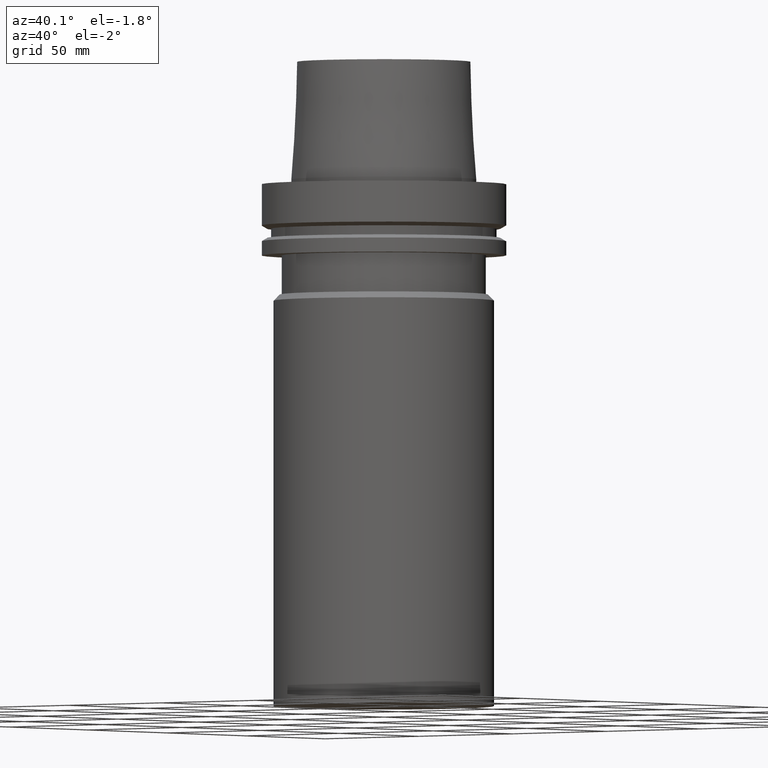
[diagram: clean part render]
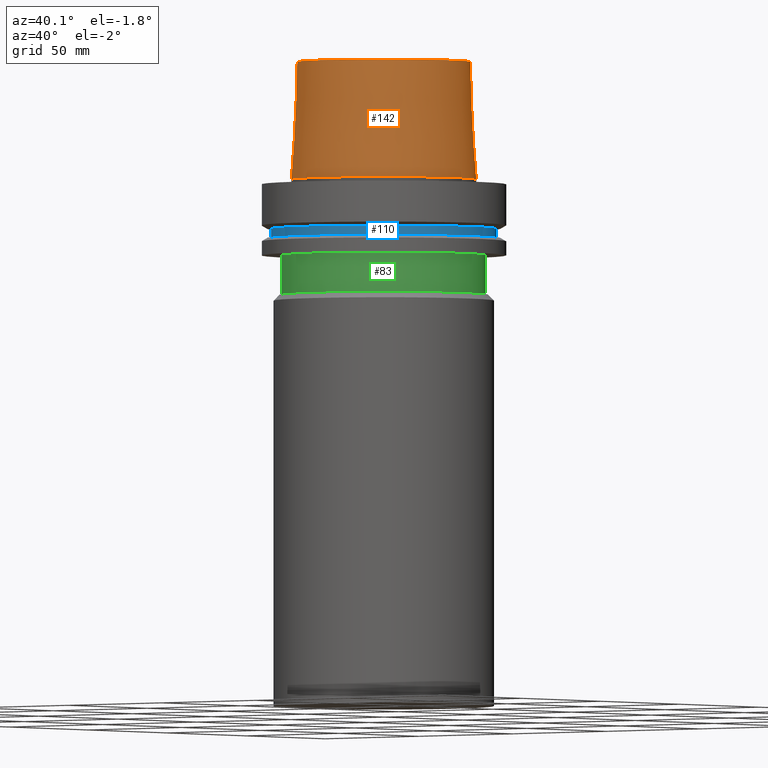
[diagram: same view with three faces highlighted in distinct colors, each labeled with its STEP entity id]
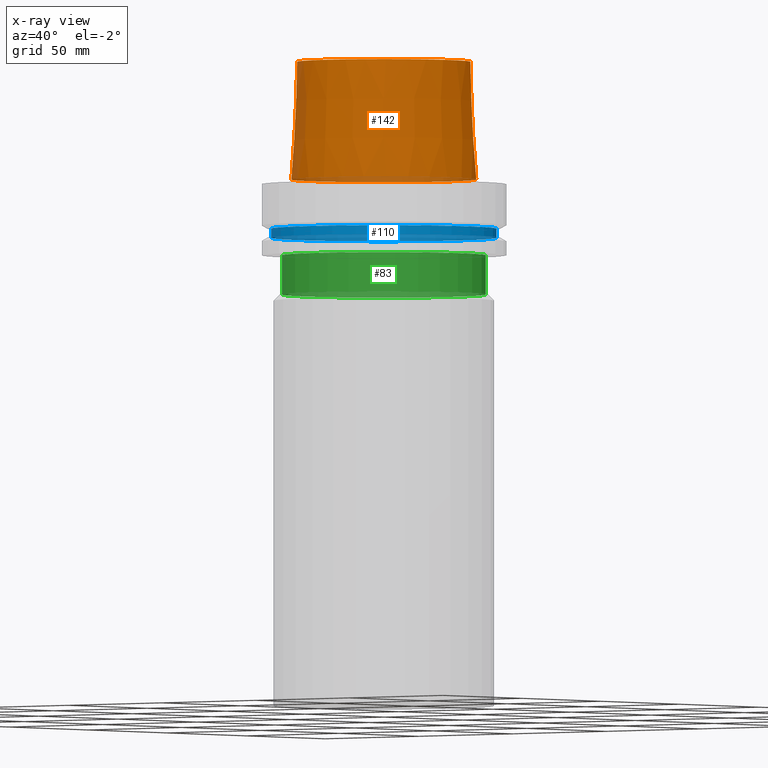
[diagram: x-ray of the same camera — body ghosted, the three highlighted faces saturated]
A machine part, auxiliary view with three faces highlighted in distinct colors.
The next image is the same camera in x-ray (body ghosted, the three faces saturated) — at least one of them is partly hidden behind the body in this view.
Their STEP definitions:

[orange] entity #142 — the highlighted conical surface has half-angle 2.862 deg.
#92=EDGE_CURVE('Unnamed[1]',#213,#213,#214,.T.);
#126=EDGE_CURVE('Unnamed[1]',#265,#265,#266,.T.);
#142=ADVANCED_FACE('Unnamed[1]',(#290,#291),#292,.T.);
#213=VERTEX_POINT('',#367);
#214=CIRCLE('',#368,37.9);
#265=VERTEX_POINT('',#432);
#266=CIRCLE('',#433,35.5000000015618);
#290=FACE_BOUND('',#463,.T.);
#291=FACE_BOUND('',#464,.T.);
#292=CONICAL_SURFACE('',#465,36.7000000007809,0.0499583956894865);
#367=CARTESIAN_POINT('',(-1.22464679914736E-016,37.9,2.0));
#368=AXIS2_PLACEMENT_3D('',#528,#529,#530);
#432=CARTESIAN_POINT('',(-3.06161699786838E-015,35.5000000015618,50.0));
#433=AXIS2_PLACEMENT_3D('',#583,#584,#585);
#463=EDGE_LOOP('',(#611));
#464=EDGE_LOOP('',(#612));
#465=AXIS2_PLACEMENT_3D('',#613,#614,#615);
#528=CARTESIAN_POINT('',(-1.22464679914735E-016,-2.44929359829471E-016,2.0));
#529=DIRECTION('',(6.12323399573677E-017,1.22464679914735E-016,-1.0));
#530=DIRECTION('',(-1.23259516440783E-032,1.0,1.22464679914735E-016));
#583=CARTESIAN_POINT('',(-3.06161699786838E-015,-6.12323399573676E-015,50.0));
#584=DIRECTION('',(6.12323399573677E-017,1.22464679914735E-016,-1.0));
#585=DIRECTION('',(-1.23259516440783E-032,1.0,1.22464679914735E-016));
#611=ORIENTED_EDGE('',*,*,#92,.F.);
#612=ORIENTED_EDGE('',*,*,#126,.T.);
#613=CARTESIAN_POINT('',(-1.59204083889156E-015,-3.18408167778312E-015,26.0));
#614=DIRECTION('',(6.12323399573677E-017,1.22464679914735E-016,-1.0));
#615=DIRECTION('',(-1.23259516440783E-032,1.0,1.22464679914735E-016));

[blue] entity #110 — the highlighted cylindrical surface (bore or boss wall) has radius 46 mm, axis along (0, 0, -1).
#77=EDGE_CURVE('Unnamed[1]',#191,#191,#192,.T.);
#110=ADVANCED_FACE('Unnamed[1]',(#239,#240),#241,.T.);
#115=EDGE_CURVE('Unnamed[1]',#248,#248,#249,.T.);
#191=VERTEX_POINT('',#339);
#192=CIRCLE('',#340,46.0);
#239=FACE_BOUND('',#399,.T.);
#240=FACE_BOUND('',#400,.T.);
#241=CYLINDRICAL_SURFACE('',#401,46.0);
#248=VERTEX_POINT('',#410);
#249=CIRCLE('',#411,46.0);
#339=CARTESIAN_POINT('',(1.10983616172729E-015,46.0,-18.125));
#340=AXIS2_PLACEMENT_3D('',#503,#504,#505);
#399=EDGE_LOOP('',(#554));
#400=EDGE_LOOP('',(#555));
#401=AXIS2_PLACEMENT_3D('',#556,#557,#558);
#410=CARTESIAN_POINT('',(1.33945743656742E-015,46.0,-21.875));
#411=AXIS2_PLACEMENT_3D('',#565,#566,#567);
#503=CARTESIAN_POINT('',(1.10983616172729E-015,2.21967232345458E-015,-18.125));
#504=DIRECTION('',(6.12323399573677E-017,1.22464679914735E-016,-1.0));
#505=DIRECTION('',(-1.23259516440783E-032,1.0,1.22464679914735E-016));
#554=ORIENTED_EDGE('',*,*,#115,.F.);
#555=ORIENTED_EDGE('',*,*,#77,.T.);
#556=CARTESIAN_POINT('',(1.22464679914735E-015,2.44929359829471E-015,-20.0));
#557=DIRECTION('',(6.12323399573677E-017,1.22464679914735E-016,-1.0));
#558=DIRECTION('',(-1.23259516440783E-032,1.0,1.22464679914735E-016));
#565=CARTESIAN_POINT('',(1.33945743656742E-015,2.67891487313483E-015,-21.875));
#566=DIRECTION('',(6.12323399573677E-017,1.22464679914735E-016,-1.0));
#567=DIRECTION('',(-1.23259516440783E-032,1.0,1.22464679914735E-016));

[green] entity #83 — the highlighted cylindrical surface (bore or boss wall) has radius 41.701 mm, axis along (0, 0, -1).
#60=EDGE_CURVE('Unnamed[1]',#163,#163,#164,.T.);
#83=ADVANCED_FACE('Unnamed[1]',(#199,#200),#201,.T.);
#119=EDGE_CURVE('Unnamed[1]',#254,#254,#255,.T.);
#163=VERTEX_POINT('',#305);
#164=CIRCLE('',#306,41.7010315672632);
#199=FACE_BOUND('',#349,.T.);
#200=FACE_BOUND('',#350,.T.);
#201=CYLINDRICAL_SURFACE('',#351,41.7010315672632);
#254=VERTEX_POINT('',#418);
#255=CIRCLE('',#419,41.7010315672632);
#305=CARTESIAN_POINT('',(1.77573785876366E-015,41.7010315672632,-29.0));
#306=AXIS2_PLACEMENT_3D('',#470,#471,#472);
#349=EDGE_LOOP('',(#512));
#350=EDGE_LOOP('',(#513));
#351=AXIS2_PLACEMENT_3D('',#514,#515,#516);
#418=CARTESIAN_POINT('',(2.75545529808154E-015,41.7010315672632,-45.0));
#419=AXIS2_PLACEMENT_3D('',#571,#572,#573);
#470=CARTESIAN_POINT('',(1.77573785876366E-015,3.55147571752732E-015,-29.0));
#471=DIRECTION('',(6.12323399573677E-017,1.22464679914735E-016,-1.0));
#472=DIRECTION('',(-1.23259516440783E-032,1.0,1.22464679914735E-016));
#512=ORIENTED_EDGE('',*,*,#119,.F.);
#513=ORIENTED_EDGE('',*,*,#60,.T.);
#514=CARTESIAN_POINT('',(2.2655965784226E-015,4.53119315684521E-015,-37.0));
#515=DIRECTION('',(6.12323399573677E-017,1.22464679914735E-016,-1.0));
#516=DIRECTION('',(-1.23259516440783E-032,1.0,1.22464679914735E-016));
#571=CARTESIAN_POINT('',(2.75545529808154E-015,5.51091059616308E-015,-45.0));
#572=DIRECTION('',(6.12323399573677E-017,1.22464679914735E-016,-1.0));
#573=DIRECTION('',(-1.23259516440783E-032,1.0,1.22464679914735E-016));